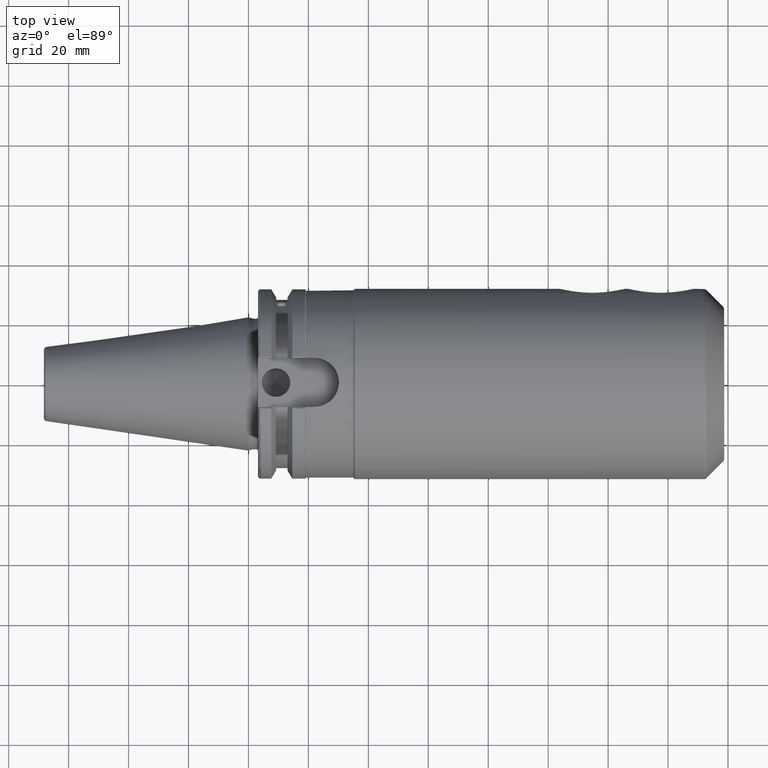
[diagram: clean part render]
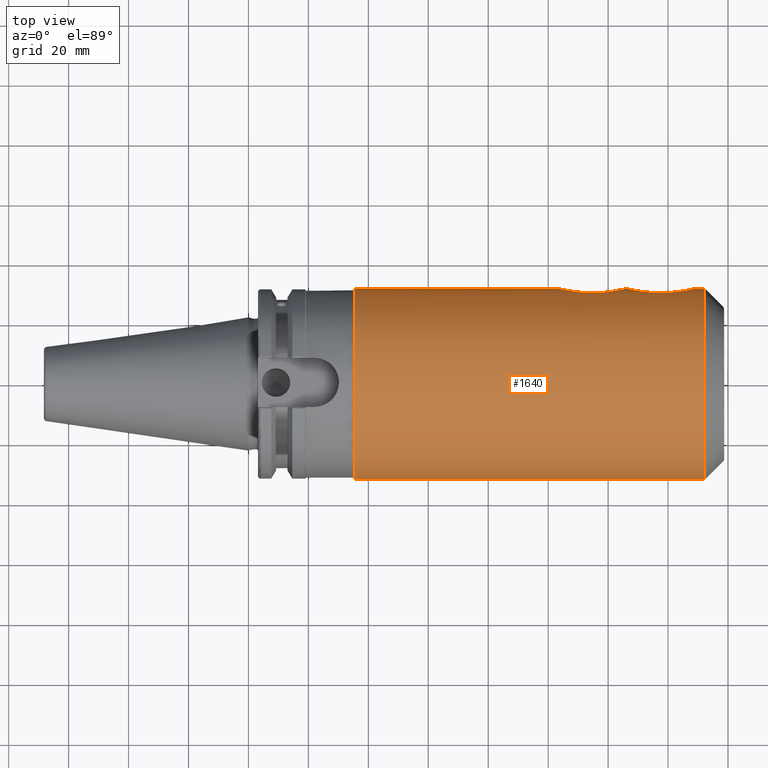
[diagram: same view with one face highlighted and labeled with its STEP entity id]
A machine part, top view. The second image highlights one B-rep face of the part: STEP entity #1640.
In plain terms, the highlighted cylindrical surface (bore or boss wall) has radius 31.75 mm, axis along (1, 0, 0).
Its self-contained STEP definition (entity closure, byte-faithful):
#52=FACE_BOUND('',#256,.T.);
#53=FACE_BOUND('',#257,.T.);
#117=CYLINDRICAL_SURFACE('',#1779,31.75);
#159=FACE_OUTER_BOUND('',#255,.T.);
#255=EDGE_LOOP('',(#1173,#1174,#1175,#1176,#1177));
#256=EDGE_LOOP('',(#1178,#1179));
#257=EDGE_LOOP('',(#1180,#1181));
#354=B_SPLINE_CURVE_WITH_KNOTS('',3,(#2485,#2486,#2487,#2488,#2489,#2490,
#2491,#2492,#2493,#2494,#2495,#2496,#2497,#2498,#2499,#2500,#2501,#2502),
 .UNSPECIFIED.,.F.,.F.,(4,2,2,2,2,2,2,2,4),(1.55813361739856,1.95459076004939,
2.35104790270021,2.73365756874866,3.11626723479712,3.49887690084557,3.88148656689402,
4.27794370954484,4.67440085219567),.UNSPECIFIED.);
#355=B_SPLINE_CURVE_WITH_KNOTS('',3,(#2504,#2505,#2506,#2507,#2508,#2509,
#2510,#2511,#2512,#2513,#2514,#2515,#2516,#2517,#2518,#2519,#2520,#2521,
#2522),.UNSPECIFIED.,.F.,.F.,(4,2,2,2,3,2,2,2,4),(4.67440085219567,5.0708579948465,
5.46731513749733,5.84992480354578,6.23253446959423,6.61514413564268,6.99775380169113,
7.39421094434196,7.79066808699279),.UNSPECIFIED.);
#358=B_SPLINE_CURVE_WITH_KNOTS('',3,(#2568,#2569,#2570,#2571,#2572,#2573,
#2574,#2575,#2576,#2577,#2578,#2579,#2580,#2581,#2582,#2583,#2584,#2585),
 .UNSPECIFIED.,.F.,.F.,(4,2,2,2,2,2,2,2,4),(1.55813361739856,1.95459076004939,
2.35104790270021,2.73365756874866,3.11626723479712,3.49887690084557,3.88148656689402,
4.27794370954484,4.67440085219567),.UNSPECIFIED.);
#359=B_SPLINE_CURVE_WITH_KNOTS('',3,(#2587,#2588,#2589,#2590,#2591,#2592,
#2593,#2594,#2595,#2596,#2597,#2598,#2599,#2600,#2601,#2602,#2603,#2604,
#2605),.UNSPECIFIED.,.F.,.F.,(4,2,2,2,3,2,2,2,4),(4.67440085219567,5.0708579948465,
5.46731513749733,5.84992480354578,6.23253446959423,6.61514413564268,6.99775380169113,
7.39421094434196,7.79066808699279),.UNSPECIFIED.);
#419=CIRCLE('',#1774,31.75);
#420=CIRCLE('',#1775,31.75);
#423=CIRCLE('',#1780,31.75);
#497=LINE('',#2763,#587);
#587=VECTOR('',#2028,31.75);
#673=VERTEX_POINT('',#2483);
#674=VERTEX_POINT('',#2484);
#678=VERTEX_POINT('',#2566);
#679=VERTEX_POINT('',#2567);
#705=VERTEX_POINT('',#2750);
#706=VERTEX_POINT('',#2752);
#709=VERTEX_POINT('',#2762);
#846=EDGE_CURVE('',#673,#674,#354,.T.);
#848=EDGE_CURVE('',#674,#673,#355,.T.);
#853=EDGE_CURVE('',#678,#679,#358,.T.);
#855=EDGE_CURVE('',#679,#678,#359,.T.);
#887=EDGE_CURVE('',#705,#706,#419,.T.);
#888=EDGE_CURVE('',#706,#705,#420,.T.);
#892=EDGE_CURVE('',#706,#709,#497,.T.);
#893=EDGE_CURVE('',#709,#709,#423,.T.);
#1173=ORIENTED_EDGE('',*,*,#888,.F.);
#1174=ORIENTED_EDGE('',*,*,#892,.T.);
#1175=ORIENTED_EDGE('',*,*,#893,.T.);
#1176=ORIENTED_EDGE('',*,*,#892,.F.);
#1177=ORIENTED_EDGE('',*,*,#887,.F.);
#1178=ORIENTED_EDGE('',*,*,#846,.T.);
#1179=ORIENTED_EDGE('',*,*,#848,.T.);
#1180=ORIENTED_EDGE('',*,*,#853,.T.);
#1181=ORIENTED_EDGE('',*,*,#855,.T.);
#1640=ADVANCED_FACE('',(#159,#52,#53),#117,.T.);
#1774=AXIS2_PLACEMENT_3D('',#2753,#2015,#2016);
#1775=AXIS2_PLACEMENT_3D('',#2754,#2017,#2018);
#1779=AXIS2_PLACEMENT_3D('',#2761,#2026,#2027);
#1780=AXIS2_PLACEMENT_3D('',#2764,#2029,#2030);
#2015=DIRECTION('center_axis',(1.,0.,0.));
#2016=DIRECTION('ref_axis',(0.,-1.,1.83697019872103E-16));
#2017=DIRECTION('center_axis',(1.,0.,0.));
#2018=DIRECTION('ref_axis',(0.,-1.,1.83697019872103E-16));
#2026=DIRECTION('center_axis',(1.,0.,0.));
#2027=DIRECTION('ref_axis',(0.,1.,0.));
#2028=DIRECTION('',(-1.,0.,0.));
#2029=DIRECTION('center_axis',(1.,0.,0.));
#2030=DIRECTION('ref_axis',(0.,0.,-1.));
#2483=CARTESIAN_POINT('',(103.74,31.75,0.));
#2484=CARTESIAN_POINT('',(125.74,31.75,0.));
#2485=CARTESIAN_POINT('Ctrl Pts',(103.74,31.75,4.16333634234434E-16));
#2486=CARTESIAN_POINT('Ctrl Pts',(103.74,31.75,-1.32152380883609));
#2487=CARTESIAN_POINT('Ctrl Pts',(104.07983500464,31.6594750605135,-2.69295752568631));
#2488=CARTESIAN_POINT('Ctrl Pts',(105.358189401269,31.3563846001761,-5.13337183259808));
#2489=CARTESIAN_POINT('Ctrl Pts',(106.294421350442,31.1491194381814,-6.20420516588416));
#2490=CARTESIAN_POINT('Ctrl Pts',(108.307178522503,30.7863791844256,-7.80453714232141));
#2491=CARTESIAN_POINT('Ctrl Pts',(109.513617855072,30.6045077339259,-8.46342964764244));
#2492=CARTESIAN_POINT('Ctrl Pts',(112.092170039103,30.3520104956337,-9.32850350560695));
#2493=CARTESIAN_POINT('Ctrl Pts',(113.464634446505,30.2845611453392,-9.53456114533919));
#2494=CARTESIAN_POINT('Ctrl Pts',(116.015365553495,30.2845611453392,-9.53456114533919));
#2495=CARTESIAN_POINT('Ctrl Pts',(117.387829960897,30.3520104956337,-9.32850350560695));
#2496=CARTESIAN_POINT('Ctrl Pts',(119.966382144928,30.6045077339259,-8.46342964764244));
#2497=CARTESIAN_POINT('Ctrl Pts',(121.172821477497,30.7863791844256,-7.80453714232142));
#2498=CARTESIAN_POINT('Ctrl Pts',(123.185578649558,31.1491194381814,-6.20420516588417));
#2499=CARTESIAN_POINT('Ctrl Pts',(124.121810598731,31.3563846001761,-5.13337183259808));
#2500=CARTESIAN_POINT('Ctrl Pts',(125.40016499536,31.6594750605135,-2.69295752568631));
#2501=CARTESIAN_POINT('Ctrl Pts',(125.74,31.75,-1.3215238088361));
#2502=CARTESIAN_POINT('Ctrl Pts',(125.74,31.75,-3.46944695195361E-15));
#2504=CARTESIAN_POINT('Ctrl Pts',(125.74,31.75,-1.38777878078145E-15));
#2505=CARTESIAN_POINT('Ctrl Pts',(125.74,31.75,1.32152380883609));
#2506=CARTESIAN_POINT('Ctrl Pts',(125.40016499536,31.6594750605135,2.69295752568631));
#2507=CARTESIAN_POINT('Ctrl Pts',(124.121810598731,31.3563846001761,5.13337183259808));
#2508=CARTESIAN_POINT('Ctrl Pts',(123.185578649558,31.1491194381814,6.20420516588417));
#2509=CARTESIAN_POINT('Ctrl Pts',(121.172821477497,30.7863791844256,7.80453714232141));
#2510=CARTESIAN_POINT('Ctrl Pts',(119.966382144928,30.6045077339259,8.46342964764244));
#2511=CARTESIAN_POINT('Ctrl Pts',(117.387829960897,30.3520104956337,9.32850350560695));
#2512=CARTESIAN_POINT('Ctrl Pts',(116.015365553495,30.2845611453392,9.53456114533919));
#2513=CARTESIAN_POINT('Ctrl Pts',(114.74,30.2845611453392,9.53456114533919));
#2514=CARTESIAN_POINT('Ctrl Pts',(113.464634446505,30.2845611453392,9.53456114533919));
#2515=CARTESIAN_POINT('Ctrl Pts',(112.092170039103,30.3520104956337,9.32850350560695));
#2516=CARTESIAN_POINT('Ctrl Pts',(109.513617855072,30.6045077339259,8.46342964764244));
#2517=CARTESIAN_POINT('Ctrl Pts',(108.307178522503,30.7863791844256,7.80453714232142));
#2518=CARTESIAN_POINT('Ctrl Pts',(106.294421350442,31.1491194381814,6.20420516588417));
#2519=CARTESIAN_POINT('Ctrl Pts',(105.358189401269,31.3563846001761,5.13337183259808));
#2520=CARTESIAN_POINT('Ctrl Pts',(104.07983500464,31.6594750605135,2.69295752568631));
#2521=CARTESIAN_POINT('Ctrl Pts',(103.74,31.75,1.32152380883609));
#2522=CARTESIAN_POINT('Ctrl Pts',(103.74,31.75,1.80411241501588E-15));
#2566=CARTESIAN_POINT('',(126.6,31.75,0.));
#2567=CARTESIAN_POINT('',(148.6,31.75,0.));
#2568=CARTESIAN_POINT('Ctrl Pts',(126.6,31.75,1.2490009027033E-15));
#2569=CARTESIAN_POINT('Ctrl Pts',(126.6,31.75,-1.32152380883609));
#2570=CARTESIAN_POINT('Ctrl Pts',(126.93983500464,31.6594750605135,-2.6929575256863));
#2571=CARTESIAN_POINT('Ctrl Pts',(128.218189401269,31.3563846001761,-5.13337183259808));
#2572=CARTESIAN_POINT('Ctrl Pts',(129.154421350442,31.1491194381814,-6.20420516588416));
#2573=CARTESIAN_POINT('Ctrl Pts',(131.167178522503,30.7863791844256,-7.80453714232141));
#2574=CARTESIAN_POINT('Ctrl Pts',(132.373617855072,30.6045077339259,-8.46342964764243));
#2575=CARTESIAN_POINT('Ctrl Pts',(134.952170039103,30.3520104956337,-9.32850350560695));
#2576=CARTESIAN_POINT('Ctrl Pts',(136.324634446505,30.2845611453392,-9.53456114533919));
#2577=CARTESIAN_POINT('Ctrl Pts',(138.875365553495,30.2845611453392,-9.53456114533919));
#2578=CARTESIAN_POINT('Ctrl Pts',(140.247829960897,30.3520104956337,-9.32850350560696));
#2579=CARTESIAN_POINT('Ctrl Pts',(142.826382144928,30.6045077339259,-8.46342964764244));
#2580=CARTESIAN_POINT('Ctrl Pts',(144.032821477497,30.7863791844256,-7.80453714232142));
#2581=CARTESIAN_POINT('Ctrl Pts',(146.045578649558,31.1491194381814,-6.20420516588417));
#2582=CARTESIAN_POINT('Ctrl Pts',(146.981810598731,31.3563846001761,-5.13337183259808));
#2583=CARTESIAN_POINT('Ctrl Pts',(148.26016499536,31.6594750605135,-2.69295752568632));
#2584=CARTESIAN_POINT('Ctrl Pts',(148.6,31.75,-1.3215238088361));
#2585=CARTESIAN_POINT('Ctrl Pts',(148.6,31.75,-3.46944695195361E-15));
#2587=CARTESIAN_POINT('Ctrl Pts',(148.6,31.75,-2.08166817117217E-15));
#2588=CARTESIAN_POINT('Ctrl Pts',(148.6,31.75,1.32152380883609));
#2589=CARTESIAN_POINT('Ctrl Pts',(148.26016499536,31.6594750605135,2.6929575256863));
#2590=CARTESIAN_POINT('Ctrl Pts',(146.981810598731,31.3563846001761,5.13337183259808));
#2591=CARTESIAN_POINT('Ctrl Pts',(146.045578649558,31.1491194381814,6.20420516588416));
#2592=CARTESIAN_POINT('Ctrl Pts',(144.032821477497,30.7863791844256,7.80453714232141));
#2593=CARTESIAN_POINT('Ctrl Pts',(142.826382144928,30.6045077339259,8.46342964764243));
#2594=CARTESIAN_POINT('Ctrl Pts',(140.247829960897,30.3520104956337,9.32850350560695));
#2595=CARTESIAN_POINT('Ctrl Pts',(138.875365553495,30.2845611453392,9.53456114533919));
#2596=CARTESIAN_POINT('Ctrl Pts',(137.6,30.2845611453392,9.53456114533919));
#2597=CARTESIAN_POINT('Ctrl Pts',(136.324634446505,30.2845611453392,9.53456114533919));
#2598=CARTESIAN_POINT('Ctrl Pts',(134.952170039103,30.3520104956337,9.32850350560695));
#2599=CARTESIAN_POINT('Ctrl Pts',(132.373617855072,30.6045077339259,8.46342964764243));
#2600=CARTESIAN_POINT('Ctrl Pts',(131.167178522503,30.7863791844256,7.80453714232142));
#2601=CARTESIAN_POINT('Ctrl Pts',(129.154421350442,31.1491194381814,6.20420516588417));
#2602=CARTESIAN_POINT('Ctrl Pts',(128.218189401269,31.3563846001761,5.13337183259808));
#2603=CARTESIAN_POINT('Ctrl Pts',(126.93983500464,31.6594750605135,2.6929575256863));
#2604=CARTESIAN_POINT('Ctrl Pts',(126.6,31.75,1.32152380883609));
#2605=CARTESIAN_POINT('Ctrl Pts',(126.6,31.75,1.52655665885959E-15));
#2750=CARTESIAN_POINT('',(152.035786437627,-3.88825358729285E-15,31.75));
#2752=CARTESIAN_POINT('',(152.035786437627,-31.75,-3.88825358729285E-15));
#2753=CARTESIAN_POINT('Origin',(152.035786437627,0.,0.));
#2754=CARTESIAN_POINT('Origin',(152.035786437627,0.,0.));
#2761=CARTESIAN_POINT('Origin',(93.975,0.,0.));
#2762=CARTESIAN_POINT('',(35.5,-31.75,-3.88825358729285E-15));
#2763=CARTESIAN_POINT('',(93.975,-31.75,-3.88825358729285E-15));
#2764=CARTESIAN_POINT('Origin',(35.5,0.,0.));